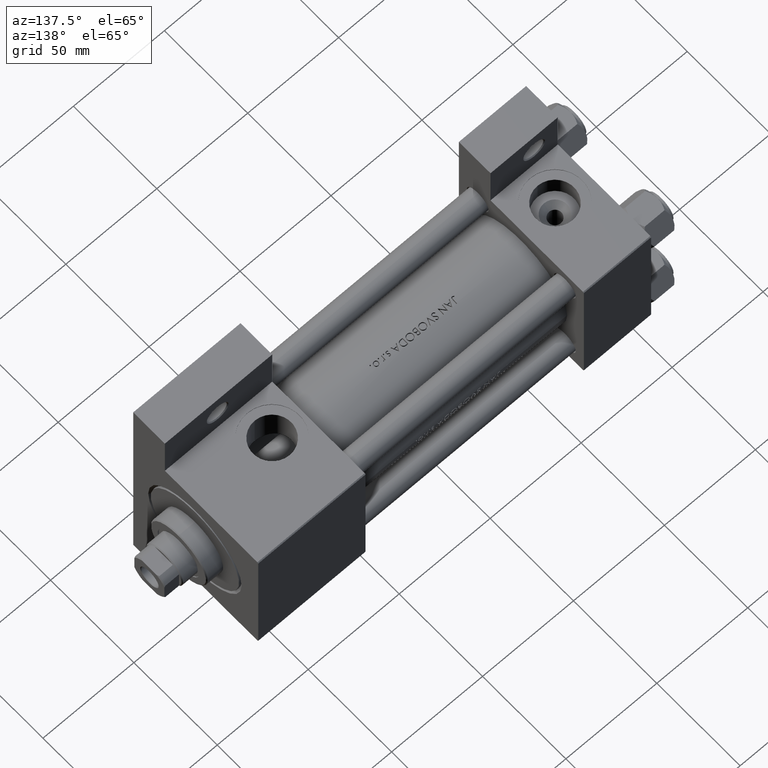
[diagram: clean part render]
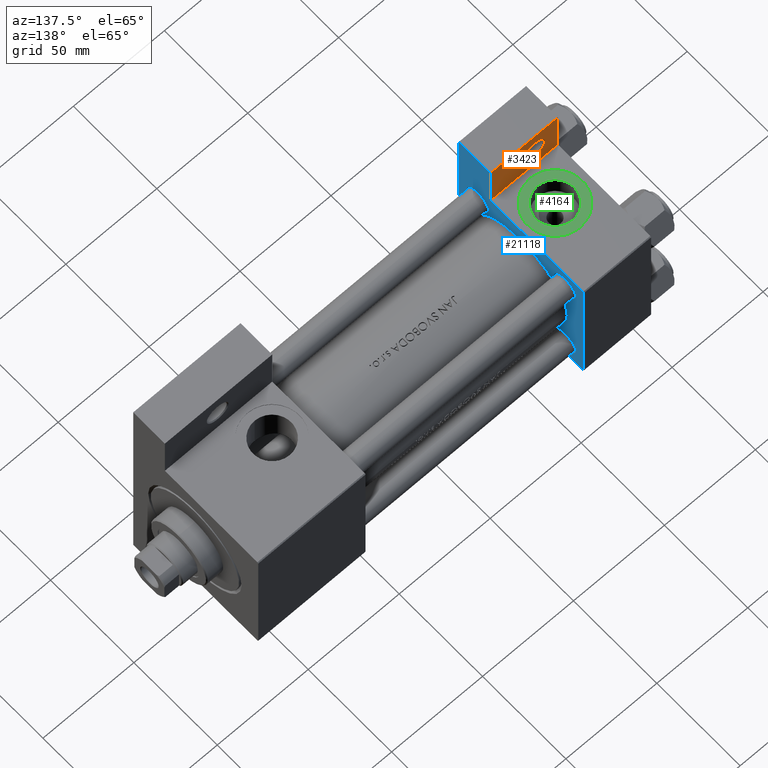
[diagram: same view with three faces highlighted in distinct colors, each labeled with its STEP entity id]
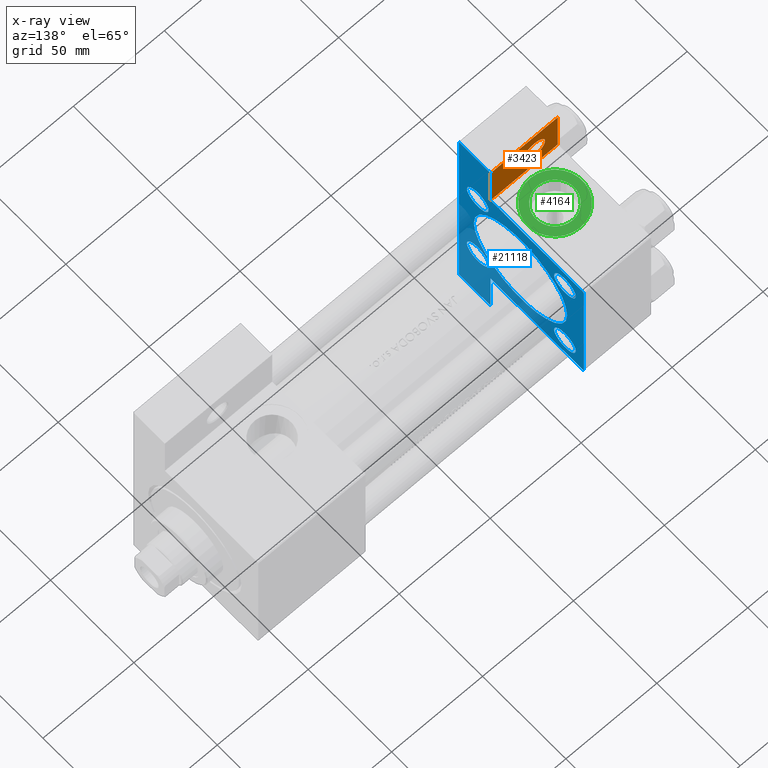
[diagram: x-ray of the same camera — body ghosted, the three highlighted faces saturated]
A machine part, auxiliary view with three faces highlighted in distinct colors.
The next image is the same camera in x-ray (body ghosted, the three faces saturated) — at least one of them is partly hidden behind the body in this view.
Their STEP definitions:

[orange] entity #3423 — the highlighted planar face has unit normal (0, -1, 0).
#1016 = VECTOR ( 'NONE', #3839, 1000.000000000000000 ) ;
#1477 = DIRECTION ( 'NONE',  ( 0.000000000000000000, 0.000000000000000000, -1.000000000000000000 ) ) ;
#2696 = DIRECTION ( 'NONE',  ( 4.278042683914906889E-17, -1.000000000000000000, 0.000000000000000000 ) ) ;
#3423 = ADVANCED_FACE ( 'NONE', ( #20174, #23895 ), #31866, .F. ) ;
#3839 = DIRECTION ( 'NONE',  ( -1.000000000000000000, 0.000000000000000000, 0.000000000000000000 ) ) ;
#5594 = EDGE_CURVE ( 'NONE', #37610, #31541, #37948, .T. ) ;
#6172 = DIRECTION ( 'NONE',  ( -1.000000000000000000, 0.000000000000000000, 0.000000000000000000 ) ) ;
#6238 = CARTESIAN_POINT ( 'NONE',  ( 3.977209754999747208E-16, -63.50000000000000000, -18.50000000000000355 ) ) ;
#6426 = ORIENTED_EDGE ( 'NONE', *, *, #39703, .T. ) ;
#6875 = ORIENTED_EDGE ( 'NONE', *, *, #44379, .T. ) ;
#7936 = CARTESIAN_POINT ( 'NONE',  ( -7.145701223179004046E-16, -37.50000000000000711, -18.50000000000000355 ) ) ;
#9520 = CIRCLE ( 'NONE', #19830, 5.999499999999938993 ) ;
#11576 = ORIENTED_EDGE ( 'NONE', *, *, #49275, .T. ) ;
#12260 = VECTOR ( 'NONE', #2696, 1000.000000000000000 ) ;
#12341 = VECTOR ( 'NONE', #15067, 1000.000000000000000 ) ;
#14160 = EDGE_CURVE ( 'NONE', #33222, #21850, #27241, .T. ) ;
#14553 = CARTESIAN_POINT ( 'NONE',  ( 18.99949999999993722, -51.00000000000000711, -18.50000000000000000 ) ) ;
#15067 = DIRECTION ( 'NONE',  ( 1.000000000000000000, 0.000000000000000000, 0.000000000000000000 ) ) ;
#15946 = DIRECTION ( 'NONE',  ( -1.000000000000000000, 0.000000000000000000, -0.000000000000000000 ) ) ;
#16521 = AXIS2_PLACEMENT_3D ( 'NONE', #26196, #41355, #37625 ) ;
#17648 = EDGE_CURVE ( 'NONE', #21850, #37610, #37041, .T. ) ;
#19259 = EDGE_LOOP ( 'NONE', ( #6426, #6875 ) ) ;
#19830 = AXIS2_PLACEMENT_3D ( 'NONE', #47282, #28356, #6172 ) ;
#20174 = FACE_BOUND ( 'NONE', #19259, .T. ) ;
#21850 = VERTEX_POINT ( 'NONE', #23245 ) ;
#23245 = CARTESIAN_POINT ( 'NONE',  ( 37.00000000000000000, -63.50000000000000000, -18.50000000000000355 ) ) ;
#23860 = CARTESIAN_POINT ( 'NONE',  ( 37.00000000000000000, -37.50000000000000000, -18.50000000000000355 ) ) ;
#23895 = FACE_OUTER_BOUND ( 'NONE', #30222, .T. ) ;
#26196 = CARTESIAN_POINT ( 'NONE',  ( 12.99999999999999822, -51.00000000000000711, -18.50000000000000000 ) ) ;
#27241 = LINE ( 'NONE', #35877, #12341 ) ;
#28356 = DIRECTION ( 'NONE',  ( 0.000000000000000000, 0.000000000000000000, -1.000000000000000000 ) ) ;
#29145 = VECTOR ( 'NONE', #29341, 1000.000000000000000 ) ;
#29210 = ORIENTED_EDGE ( 'NONE', *, *, #14160, .T. ) ;
#29341 = DIRECTION ( 'NONE',  ( -0.000000000000000000, 1.000000000000000000, 0.000000000000000000 ) ) ;
#30222 = EDGE_LOOP ( 'NONE', ( #47460, #39009, #11576, #29210 ) ) ;
#31541 = VERTEX_POINT ( 'NONE', #7936 ) ;
#31866 = PLANE ( 'NONE',  #36742 ) ;
#33222 = VERTEX_POINT ( 'NONE', #6238 ) ;
#34790 = CIRCLE ( 'NONE', #16521, 5.999499999999938993 ) ;
#35877 = CARTESIAN_POINT ( 'NONE',  ( 3.977209754999747208E-16, -63.50000000000000000, -18.50000000000000355 ) ) ;
#36253 = VERTEX_POINT ( 'NONE', #14553 ) ;
#36742 = AXIS2_PLACEMENT_3D ( 'NONE', #47047, #1477, #15946 ) ;
#37041 = LINE ( 'NONE', #48257, #29145 ) ;
#37610 = VERTEX_POINT ( 'NONE', #23860 ) ;
#37625 = DIRECTION ( 'NONE',  ( -1.000000000000000000, 0.000000000000000000, 0.000000000000000000 ) ) ;
#37948 = LINE ( 'NONE', #49166, #1016 ) ;
#39009 = ORIENTED_EDGE ( 'NONE', *, *, #5594, .T. ) ;
#39703 = EDGE_CURVE ( 'NONE', #36253, #42904, #34790, .T. ) ;
#40264 = CARTESIAN_POINT ( 'NONE',  ( 7.000500000000058343, -51.00000000000000711, -18.50000000000000000 ) ) ;
#40298 = CARTESIAN_POINT ( 'NONE',  ( 3.977209754999744250E-16, -63.49999999999998579, -18.50000000000000355 ) ) ;
#41355 = DIRECTION ( 'NONE',  ( 0.000000000000000000, 0.000000000000000000, -1.000000000000000000 ) ) ;
#42904 = VERTEX_POINT ( 'NONE', #40264 ) ;
#44379 = EDGE_CURVE ( 'NONE', #42904, #36253, #9520, .T. ) ;
#44768 = LINE ( 'NONE', #40298, #12260 ) ;
#47047 = CARTESIAN_POINT ( 'NONE',  ( 0.000000000000000000, 0.000000000000000000, -18.50000000000000000 ) ) ;
#47282 = CARTESIAN_POINT ( 'NONE',  ( 12.99999999999999822, -51.00000000000000711, -18.50000000000000000 ) ) ;
#47460 = ORIENTED_EDGE ( 'NONE', *, *, #17648, .T. ) ;
#48257 = CARTESIAN_POINT ( 'NONE',  ( 37.00000000000000000, -63.49999999999998579, -18.50000000000000355 ) ) ;
#49166 = CARTESIAN_POINT ( 'NONE',  ( -7.145701223179000102E-16, -37.50000000000001421, -18.49999999999999645 ) ) ;
#49275 = EDGE_CURVE ( 'NONE', #31541, #33222, #44768, .T. ) ;

[blue] entity #21118 — the highlighted planar face has unit normal (-1, 0, -0).
#390 = PLANE ( 'NONE',  #18530 ) ;
#651 = EDGE_CURVE ( 'NONE', #9562, #37226, #9779, .T. ) ;
#1100 = DIRECTION ( 'NONE',  ( 1.000000000000000000, -0.000000000000000000, 0.000000000000000000 ) ) ;
#1123 = CIRCLE ( 'NONE', #22609, 28.00000000000000000 ) ;
#1909 = ORIENTED_EDGE ( 'NONE', *, *, #25142, .F. ) ;
#2002 = CARTESIAN_POINT ( 'NONE',  ( 37.00000000000000000, -26.14999999999999147, -32.65000000000001279 ) ) ;
#2040 = DIRECTION ( 'NONE',  ( 0.000000000000000000, 0.000000000000000000, 1.000000000000000000 ) ) ;
#2127 = DIRECTION ( 'NONE',  ( -1.000000000000000000, 0.000000000000000000, -0.000000000000000000 ) ) ;
#2305 = DIRECTION ( 'NONE',  ( 0.000000000000000000, -1.000000000000000000, -9.251858538542972814E-17 ) ) ;
#2362 = CIRCLE ( 'NONE', #7130, 6.500000000000030198 ) ;
#2587 = VECTOR ( 'NONE', #43322, 1000.000000000000000 ) ;
#2820 = DIRECTION ( 'NONE',  ( -1.000000000000000000, 0.000000000000000000, -0.000000000000000000 ) ) ;
#2940 = DIRECTION ( 'NONE',  ( 0.000000000000000000, 0.000000000000000000, 1.000000000000000000 ) ) ;
#3150 = AXIS2_PLACEMENT_3D ( 'NONE', #22230, #41616, #3294 ) ;
#3294 = DIRECTION ( 'NONE',  ( 0.000000000000000000, 0.000000000000000000, 1.000000000000000000 ) ) ;
#3341 = CARTESIAN_POINT ( 'NONE',  ( 37.00000000000000000, 26.14999999999999858, 32.65000000000004121 ) ) ;
#3372 = CARTESIAN_POINT ( 'NONE',  ( 37.00000000000001421, 63.50000000000000000, -37.50000000000002132 ) ) ;
#3374 = VERTEX_POINT ( 'NONE', #27151 ) ;
#3883 = EDGE_LOOP ( 'NONE', ( #35270, #9522 ) ) ;
#4012 = VECTOR ( 'NONE', #2305, 1000.000000000000000 ) ;
#4124 = CARTESIAN_POINT ( 'NONE',  ( 37.00000000000000000, 0.000000000000000000, 0.000000000000000000 ) ) ;
#4544 = EDGE_CURVE ( 'NONE', #21850, #37226, #16937, .T. ) ;
#4619 = FACE_BOUND ( 'NONE', #5586, .T. ) ;
#5019 = VERTEX_POINT ( 'NONE', #44983 ) ;
#5041 = CARTESIAN_POINT ( 'NONE',  ( 37.00000000000000000, 37.49999999999999289, 37.50000000000000000 ) ) ;
#5586 = EDGE_LOOP ( 'NONE', ( #33278, #30152 ) ) ;
#5687 = ORIENTED_EDGE ( 'NONE', *, *, #19101, .T. ) ;
#5759 = CARTESIAN_POINT ( 'NONE',  ( 37.00000000000000000, 26.14999999999999858, 26.15000000000000213 ) ) ;
#5923 = CARTESIAN_POINT ( 'NONE',  ( 37.00000000000000000, -26.14999999999999147, 26.15000000000000924 ) ) ;
#6099 = DIRECTION ( 'NONE',  ( 0.000000000000000000, 0.000000000000000000, 1.000000000000000000 ) ) ;
#6632 = AXIS2_PLACEMENT_3D ( 'NONE', #37881, #34152, #45601 ) ;
#7130 = AXIS2_PLACEMENT_3D ( 'NONE', #22123, #48751, #2940 ) ;
#7536 = VERTEX_POINT ( 'NONE', #43719 ) ;
#7943 = VERTEX_POINT ( 'NONE', #2002 ) ;
#9295 = CARTESIAN_POINT ( 'NONE',  ( 37.00000000000000000, 37.49999999999999289, -37.50000000000000000 ) ) ;
#9522 = ORIENTED_EDGE ( 'NONE', *, *, #26318, .T. ) ;
#9562 = VERTEX_POINT ( 'NONE', #3372 ) ;
#9779 = LINE ( 'NONE', #9295, #4012 ) ;
#9918 = DIRECTION ( 'NONE',  ( 0.000000000000000000, 0.000000000000000000, 1.000000000000000000 ) ) ;
#10241 = VERTEX_POINT ( 'NONE', #27100 ) ;
#10898 = CARTESIAN_POINT ( 'NONE',  ( 37.00000000000001421, 63.50000000000001421, 26.72167621838005047 ) ) ;
#10911 = AXIS2_PLACEMENT_3D ( 'NONE', #21752, #2820, #37420 ) ;
#11228 = EDGE_LOOP ( 'NONE', ( #5687, #20211 ) ) ;
#11851 = CARTESIAN_POINT ( 'NONE',  ( 37.00000000000000711, 37.50000000000000711, -18.50000000000000355 ) ) ;
#12037 = CARTESIAN_POINT ( 'NONE',  ( 37.00000000000000000, -63.50000000000000000, -37.49999999999999289 ) ) ;
#12290 = DIRECTION ( 'NONE',  ( 0.000000000000000000, 0.000000000000000000, -1.000000000000000000 ) ) ;
#12674 = CIRCLE ( 'NONE', #3150, 6.500000000000002665 ) ;
#12755 = EDGE_CURVE ( 'NONE', #38329, #26671, #18043, .T. ) ;
#12776 = CIRCLE ( 'NONE', #33468, 6.500000000000008882 ) ;
#12779 = DIRECTION ( 'NONE',  ( 0.000000000000000000, 9.251858538542971581E-17, -1.000000000000000000 ) ) ;
#13148 = CARTESIAN_POINT ( 'NONE',  ( 37.00000000000000000, -26.14999999999999147, 32.65000000000001990 ) ) ;
#13649 = DIRECTION ( 'NONE',  ( -1.000000000000000000, 0.000000000000000000, -0.000000000000000000 ) ) ;
#13768 = CARTESIAN_POINT ( 'NONE',  ( 37.00000000000000000, 36.99999999999999289, 37.50000000000000000 ) ) ;
#14317 = AXIS2_PLACEMENT_3D ( 'NONE', #32101, #28114, #36561 ) ;
#14637 = LINE ( 'NONE', #10898, #46553 ) ;
#14834 = CARTESIAN_POINT ( 'NONE',  ( 37.00000000000000000, 26.14999999999999858, -19.64999999999997371 ) ) ;
#14837 = EDGE_CURVE ( 'NONE', #33849, #9562, #14637, .T. ) ;
#14881 = DIRECTION ( 'NONE',  ( 0.000000000000000000, -1.734723475976806848E-16, -1.000000000000000000 ) ) ;
#14892 = CIRCLE ( 'NONE', #10911, 6.500000000000002665 ) ;
#15156 = CARTESIAN_POINT ( 'NONE',  ( 37.00000000000000000, -26.14999999999999147, -19.65000000000000924 ) ) ;
#15421 = AXIS2_PLACEMENT_3D ( 'NONE', #5759, #25672, #2040 ) ;
#16884 = CIRCLE ( 'NONE', #48805, 6.500000000000030198 ) ;
#16937 = LINE ( 'NONE', #20685, #2587 ) ;
#17016 = LINE ( 'NONE', #13768, #19556 ) ;
#17441 = CARTESIAN_POINT ( 'NONE',  ( 37.00000000000001421, 63.50000000000001421, -18.50000000000000355 ) ) ;
#17491 = ORIENTED_EDGE ( 'NONE', *, *, #651, .F. ) ;
#17648 = EDGE_CURVE ( 'NONE', #21850, #37610, #37041, .T. ) ;
#17649 = CARTESIAN_POINT ( 'NONE',  ( 37.00000000000000000, -37.50000000000000711, 36.99999999999999289 ) ) ;
#18043 = LINE ( 'NONE', #33217, #28192 ) ;
#18530 = AXIS2_PLACEMENT_3D ( 'NONE', #4124, #19330, #31014 ) ;
#19101 = EDGE_CURVE ( 'NONE', #7943, #20783, #14892, .T. ) ;
#19330 = DIRECTION ( 'NONE',  ( -1.000000000000000000, 0.000000000000000000, -0.000000000000000000 ) ) ;
#19384 = ORIENTED_EDGE ( 'NONE', *, *, #34454, .T. ) ;
#19556 = VECTOR ( 'NONE', #21009, 1000.000000000000114 ) ;
#19787 = ORIENTED_EDGE ( 'NONE', *, *, #4544, .T. ) ;
#20211 = ORIENTED_EDGE ( 'NONE', *, *, #43889, .T. ) ;
#20262 = CARTESIAN_POINT ( 'NONE',  ( 37.00000000000000000, -37.50000000000000711, 37.49999999999999289 ) ) ;
#20507 = VECTOR ( 'NONE', #43068, 1000.000000000000000 ) ;
#20685 = CARTESIAN_POINT ( 'NONE',  ( 37.00000000000000000, -63.49999999999998579, 26.72167621838007889 ) ) ;
#20783 = VERTEX_POINT ( 'NONE', #15156 ) ;
#20887 = EDGE_LOOP ( 'NONE', ( #25855, #40323 ) ) ;
#21009 = DIRECTION ( 'NONE',  ( 0.000000000000000000, -0.7071067811865474617, 0.7071067811865474617 ) ) ;
#21118 = ADVANCED_FACE ( 'NONE', ( #23064, #49210, #45465, #4619, #26555, #38235 ), #390, .F. ) ;
#21752 = CARTESIAN_POINT ( 'NONE',  ( 37.00000000000000000, -26.14999999999999147, -26.15000000000000924 ) ) ;
#21850 = VERTEX_POINT ( 'NONE', #23245 ) ;
#22123 = CARTESIAN_POINT ( 'NONE',  ( 37.00000000000000000, 26.14999999999999858, -26.15000000000000213 ) ) ;
#22187 = CARTESIAN_POINT ( 'NONE',  ( 37.00000000000000711, 3.429011037612589276E-15, -28.50000000000000000 ) ) ;
#22230 = CARTESIAN_POINT ( 'NONE',  ( 37.00000000000000000, -26.14999999999999147, -26.15000000000000924 ) ) ;
#22418 = EDGE_CURVE ( 'NONE', #48695, #3374, #16884, .T. ) ;
#22609 = AXIS2_PLACEMENT_3D ( 'NONE', #35714, #1100, #28253 ) ;
#23064 = FACE_BOUND ( 'NONE', #11228, .T. ) ;
#23104 = ORIENTED_EDGE ( 'NONE', *, *, #17648, .F. ) ;
#23245 = CARTESIAN_POINT ( 'NONE',  ( 37.00000000000000000, -63.50000000000000000, -18.50000000000000355 ) ) ;
#23860 = CARTESIAN_POINT ( 'NONE',  ( 37.00000000000000000, -37.50000000000000000, -18.50000000000000355 ) ) ;
#25108 = ORIENTED_EDGE ( 'NONE', *, *, #45413, .T. ) ;
#25142 = EDGE_CURVE ( 'NONE', #5019, #38491, #34695, .T. ) ;
#25672 = DIRECTION ( 'NONE',  ( -1.000000000000000000, 0.000000000000000000, -0.000000000000000000 ) ) ;
#25855 = ORIENTED_EDGE ( 'NONE', *, *, #42730, .F. ) ;
#26184 = ORIENTED_EDGE ( 'NONE', *, *, #12755, .T. ) ;
#26224 = CIRCLE ( 'NONE', #14317, 6.500000000000030198 ) ;
#26304 = CARTESIAN_POINT ( 'NONE',  ( 37.00000000000000000, 36.99999999999999289, 37.50000000000000000 ) ) ;
#26318 = EDGE_CURVE ( 'NONE', #30770, #10241, #43203, .T. ) ;
#26402 = ORIENTED_EDGE ( 'NONE', *, *, #14837, .F. ) ;
#26555 = FACE_BOUND ( 'NONE', #20887, .T. ) ;
#26671 = VERTEX_POINT ( 'NONE', #31583 ) ;
#26936 = CIRCLE ( 'NONE', #47593, 28.00000000000000000 ) ;
#27100 = CARTESIAN_POINT ( 'NONE',  ( 37.00000000000000000, -26.14999999999999147, 19.65000000000000213 ) ) ;
#27151 = CARTESIAN_POINT ( 'NONE',  ( 37.00000000000000000, 26.14999999999999858, -32.65000000000003411 ) ) ;
#27367 = EDGE_CURVE ( 'NONE', #29795, #31674, #1123, .T. ) ;
#27846 = EDGE_CURVE ( 'NONE', #32044, #39673, #36884, .T. ) ;
#28087 = DIRECTION ( 'NONE',  ( 1.000000000000000000, -0.000000000000000000, 0.000000000000000000 ) ) ;
#28114 = DIRECTION ( 'NONE',  ( -1.000000000000000000, 0.000000000000000000, -0.000000000000000000 ) ) ;
#28192 = VECTOR ( 'NONE', #48408, 1000.000000000000000 ) ;
#28253 = DIRECTION ( 'NONE',  ( 0.000000000000000000, 0.000000000000000000, 1.000000000000000000 ) ) ;
#28848 = DIRECTION ( 'NONE',  ( -0.000000000000000000, -0.7071067811865474617, -0.7071067811865474617 ) ) ;
#29132 = ORIENTED_EDGE ( 'NONE', *, *, #32349, .T. ) ;
#29145 = VECTOR ( 'NONE', #29341, 1000.000000000000000 ) ;
#29282 = ORIENTED_EDGE ( 'NONE', *, *, #39877, .F. ) ;
#29341 = DIRECTION ( 'NONE',  ( -0.000000000000000000, 1.000000000000000000, 0.000000000000000000 ) ) ;
#29708 = EDGE_LOOP ( 'NONE', ( #26184, #19384, #41533, #23104, #19787, #17491, #26402, #29282, #1909, #29132 ) ) ;
#29712 = CARTESIAN_POINT ( 'NONE',  ( 37.00000000000001421, 63.50000000000000000, -18.50000000000000355 ) ) ;
#29795 = VERTEX_POINT ( 'NONE', #22187 ) ;
#30152 = ORIENTED_EDGE ( 'NONE', *, *, #27846, .T. ) ;
#30770 = VERTEX_POINT ( 'NONE', #13148 ) ;
#31014 = DIRECTION ( 'NONE',  ( -0.000000000000000000, 0.000000000000000000, 1.000000000000000000 ) ) ;
#31583 = CARTESIAN_POINT ( 'NONE',  ( 37.00000000000000000, -37.00000000000000711, 37.49999999999999289 ) ) ;
#31674 = VERTEX_POINT ( 'NONE', #47505 ) ;
#32044 = VERTEX_POINT ( 'NONE', #3341 ) ;
#32101 = CARTESIAN_POINT ( 'NONE',  ( 37.00000000000000000, 26.14999999999999858, 26.15000000000000213 ) ) ;
#32265 = CARTESIAN_POINT ( 'NONE',  ( 37.00000000000000000, 26.14999999999999858, -26.15000000000000213 ) ) ;
#32289 = EDGE_CURVE ( 'NONE', #7536, #37610, #46388, .T. ) ;
#32349 = EDGE_CURVE ( 'NONE', #5019, #38329, #17016, .T. ) ;
#32590 = LINE ( 'NONE', #17649, #44269 ) ;
#33217 = CARTESIAN_POINT ( 'NONE',  ( 37.00000000000000000, 37.49999999999999289, 37.50000000000000000 ) ) ;
#33278 = ORIENTED_EDGE ( 'NONE', *, *, #45294, .T. ) ;
#33468 = AXIS2_PLACEMENT_3D ( 'NONE', #5923, #13649, #9918 ) ;
#33849 = VERTEX_POINT ( 'NONE', #29712 ) ;
#34152 = DIRECTION ( 'NONE',  ( -1.000000000000000000, 0.000000000000000000, -0.000000000000000000 ) ) ;
#34454 = EDGE_CURVE ( 'NONE', #26671, #7536, #32590, .T. ) ;
#34695 = LINE ( 'NONE', #5041, #43991 ) ;
#35270 = ORIENTED_EDGE ( 'NONE', *, *, #47260, .T. ) ;
#35714 = CARTESIAN_POINT ( 'NONE',  ( 37.00000000000000711, 0.000000000000000000, -0.5000000000000004441 ) ) ;
#36561 = DIRECTION ( 'NONE',  ( 0.000000000000000000, 0.000000000000000000, 1.000000000000000000 ) ) ;
#36884 = CIRCLE ( 'NONE', #15421, 6.500000000000030198 ) ;
#37041 = LINE ( 'NONE', #48257, #29145 ) ;
#37226 = VERTEX_POINT ( 'NONE', #12037 ) ;
#37420 = DIRECTION ( 'NONE',  ( 0.000000000000000000, 0.000000000000000000, 1.000000000000000000 ) ) ;
#37610 = VERTEX_POINT ( 'NONE', #23860 ) ;
#37881 = CARTESIAN_POINT ( 'NONE',  ( 37.00000000000000000, -26.14999999999999147, 26.15000000000000924 ) ) ;
#38235 = FACE_OUTER_BOUND ( 'NONE', #29708, .T. ) ;
#38329 = VERTEX_POINT ( 'NONE', #26304 ) ;
#38491 = VERTEX_POINT ( 'NONE', #11851 ) ;
#39030 = CARTESIAN_POINT ( 'NONE',  ( 37.00000000000000711, 0.000000000000000000, -0.5000000000000004441 ) ) ;
#39673 = VERTEX_POINT ( 'NONE', #40616 ) ;
#39825 = LINE ( 'NONE', #17441, #20507 ) ;
#39877 = EDGE_CURVE ( 'NONE', #38491, #33849, #39825, .T. ) ;
#40323 = ORIENTED_EDGE ( 'NONE', *, *, #27367, .F. ) ;
#40616 = CARTESIAN_POINT ( 'NONE',  ( 37.00000000000000000, 26.14999999999999858, 19.64999999999997016 ) ) ;
#41533 = ORIENTED_EDGE ( 'NONE', *, *, #32289, .T. ) ;
#41616 = DIRECTION ( 'NONE',  ( -1.000000000000000000, 0.000000000000000000, -0.000000000000000000 ) ) ;
#41812 = VECTOR ( 'NONE', #12779, 1000.000000000000000 ) ;
#41933 = ORIENTED_EDGE ( 'NONE', *, *, #22418, .T. ) ;
#42730 = EDGE_CURVE ( 'NONE', #31674, #29795, #26936, .T. ) ;
#43068 = DIRECTION ( 'NONE',  ( 2.668805347656626678E-16, 1.000000000000000000, 0.000000000000000000 ) ) ;
#43203 = CIRCLE ( 'NONE', #6632, 6.500000000000008882 ) ;
#43265 = DIRECTION ( 'NONE',  ( 0.000000000000000000, 0.000000000000000000, 1.000000000000000000 ) ) ;
#43322 = DIRECTION ( 'NONE',  ( 0.000000000000000000, -1.734723475976806848E-16, -1.000000000000000000 ) ) ;
#43429 = EDGE_LOOP ( 'NONE', ( #25108, #41933 ) ) ;
#43719 = CARTESIAN_POINT ( 'NONE',  ( 37.00000000000000000, -37.50000000000000711, 36.99999999999999289 ) ) ;
#43889 = EDGE_CURVE ( 'NONE', #20783, #7943, #12674, .T. ) ;
#43991 = VECTOR ( 'NONE', #12290, 1000.000000000000000 ) ;
#44269 = VECTOR ( 'NONE', #28848, 1000.000000000000114 ) ;
#44983 = CARTESIAN_POINT ( 'NONE',  ( 37.00000000000000000, 37.49999999999999289, 37.00000000000000000 ) ) ;
#45294 = EDGE_CURVE ( 'NONE', #39673, #32044, #26224, .T. ) ;
#45413 = EDGE_CURVE ( 'NONE', #3374, #48695, #2362, .T. ) ;
#45465 = FACE_BOUND ( 'NONE', #3883, .T. ) ;
#45601 = DIRECTION ( 'NONE',  ( 0.000000000000000000, 0.000000000000000000, 1.000000000000000000 ) ) ;
#46388 = LINE ( 'NONE', #20262, #41812 ) ;
#46553 = VECTOR ( 'NONE', #14881, 1000.000000000000000 ) ;
#47260 = EDGE_CURVE ( 'NONE', #10241, #30770, #12776, .T. ) ;
#47505 = CARTESIAN_POINT ( 'NONE',  ( 37.00000000000000711, 0.000000000000000000, 27.50000000000000000 ) ) ;
#47593 = AXIS2_PLACEMENT_3D ( 'NONE', #39030, #28087, #43265 ) ;
#48257 = CARTESIAN_POINT ( 'NONE',  ( 37.00000000000000000, -63.49999999999998579, -18.50000000000000355 ) ) ;
#48408 = DIRECTION ( 'NONE',  ( 0.000000000000000000, -1.000000000000000000, -9.251858538542971581E-17 ) ) ;
#48695 = VERTEX_POINT ( 'NONE', #14834 ) ;
#48751 = DIRECTION ( 'NONE',  ( -1.000000000000000000, 0.000000000000000000, -0.000000000000000000 ) ) ;
#48805 = AXIS2_PLACEMENT_3D ( 'NONE', #32265, #2127, #6099 ) ;
#49210 = FACE_BOUND ( 'NONE', #43429, .T. ) ;

[green] entity #4164 — the highlighted planar face has unit normal (0, -0, 1).
#128 = VERTEX_POINT ( 'NONE', #47504 ) ;
#1231 = EDGE_LOOP ( 'NONE', ( #6663, #47771 ) ) ;
#1359 = DIRECTION ( 'NONE',  ( 0.000000000000000000, 8.673617379884036705E-17, -1.000000000000000000 ) ) ;
#2178 = CARTESIAN_POINT ( 'NONE',  ( 18.50000000000000000, -37.30000000000000426, -10.48000000000000398 ) ) ;
#2325 = DIRECTION ( 'NONE',  ( 0.000000000000000000, -1.000000000000000000, -8.673617379884036705E-17 ) ) ;
#4164 = ADVANCED_FACE ( 'NONE', ( #31008, #46193 ), #12086, .T. ) ;
#4703 = EDGE_CURVE ( 'NONE', #128, #30135, #15358, .T. ) ;
#6268 = DIRECTION ( 'NONE',  ( 0.000000000000000000, 0.000000000000000000, -1.000000000000000000 ) ) ;
#6663 = ORIENTED_EDGE ( 'NONE', *, *, #4703, .T. ) ;
#8493 = AXIS2_PLACEMENT_3D ( 'NONE', #10050, #2325, #17531 ) ;
#10018 = CARTESIAN_POINT ( 'NONE',  ( 18.50000000000000000, -37.30000000000000426, -3.452099717193846907E-15 ) ) ;
#10050 = CARTESIAN_POINT ( 'NONE',  ( 18.50000000000000000, -37.30000000000000426, -3.452099717193846907E-15 ) ) ;
#12086 = PLANE ( 'NONE',  #30412 ) ;
#13940 = CARTESIAN_POINT ( 'NONE',  ( 18.50000000000000000, -37.30000000000000426, -3.452099717193846907E-15 ) ) ;
#14424 = AXIS2_PLACEMENT_3D ( 'NONE', #49242, #15135, #34547 ) ;
#15135 = DIRECTION ( 'NONE',  ( 0.000000000000000000, -1.000000000000000000, -8.673617379884036705E-17 ) ) ;
#15358 = CIRCLE ( 'NONE', #16143, 15.00000000000000178 ) ;
#15585 = CARTESIAN_POINT ( 'NONE',  ( 18.50000000000000000, -37.30000000000000426, -3.452099717193846907E-15 ) ) ;
#16143 = AXIS2_PLACEMENT_3D ( 'NONE', #13940, #29613, #33586 ) ;
#17531 = DIRECTION ( 'NONE',  ( 0.000000000000000000, 0.000000000000000000, -1.000000000000000000 ) ) ;
#18281 = EDGE_CURVE ( 'NONE', #42813, #47428, #27577, .T. ) ;
#18466 = DIRECTION ( 'NONE',  ( 0.000000000000000000, -1.000000000000000000, -8.673617379884036705E-17 ) ) ;
#19187 = CIRCLE ( 'NONE', #14424, 10.48000000000000043 ) ;
#27577 = CIRCLE ( 'NONE', #8493, 10.48000000000000043 ) ;
#29613 = DIRECTION ( 'NONE',  ( 0.000000000000000000, -1.000000000000000000, -8.673617379884036705E-17 ) ) ;
#30135 = VERTEX_POINT ( 'NONE', #41404 ) ;
#30412 = AXIS2_PLACEMENT_3D ( 'NONE', #15585, #39192, #1359 ) ;
#31008 = FACE_BOUND ( 'NONE', #32569, .T. ) ;
#31535 = CARTESIAN_POINT ( 'NONE',  ( 18.50000000000000000, -37.30000000000000426, 10.47999999999999687 ) ) ;
#32569 = EDGE_LOOP ( 'NONE', ( #47636, #45514 ) ) ;
#33586 = DIRECTION ( 'NONE',  ( 0.000000000000000000, 0.000000000000000000, -1.000000000000000000 ) ) ;
#34547 = DIRECTION ( 'NONE',  ( 0.000000000000000000, 0.000000000000000000, -1.000000000000000000 ) ) ;
#36348 = CIRCLE ( 'NONE', #49081, 15.00000000000000178 ) ;
#38992 = EDGE_CURVE ( 'NONE', #30135, #128, #36348, .T. ) ;
#39192 = DIRECTION ( 'NONE',  ( 0.000000000000000000, -1.000000000000000000, -8.673617379884036705E-17 ) ) ;
#41404 = CARTESIAN_POINT ( 'NONE',  ( 18.50000000000000355, -37.30000000000000426, 14.99999999999999822 ) ) ;
#42813 = VERTEX_POINT ( 'NONE', #2178 ) ;
#45514 = ORIENTED_EDGE ( 'NONE', *, *, #48455, .F. ) ;
#46193 = FACE_OUTER_BOUND ( 'NONE', #1231, .T. ) ;
#47428 = VERTEX_POINT ( 'NONE', #31535 ) ;
#47504 = CARTESIAN_POINT ( 'NONE',  ( 18.50000000000000000, -37.30000000000000426, -15.00000000000000533 ) ) ;
#47636 = ORIENTED_EDGE ( 'NONE', *, *, #18281, .F. ) ;
#47771 = ORIENTED_EDGE ( 'NONE', *, *, #38992, .T. ) ;
#48455 = EDGE_CURVE ( 'NONE', #47428, #42813, #19187, .T. ) ;
#49081 = AXIS2_PLACEMENT_3D ( 'NONE', #10018, #18466, #6268 ) ;
#49242 = CARTESIAN_POINT ( 'NONE',  ( 18.50000000000000000, -37.30000000000000426, -3.452099717193846907E-15 ) ) ;